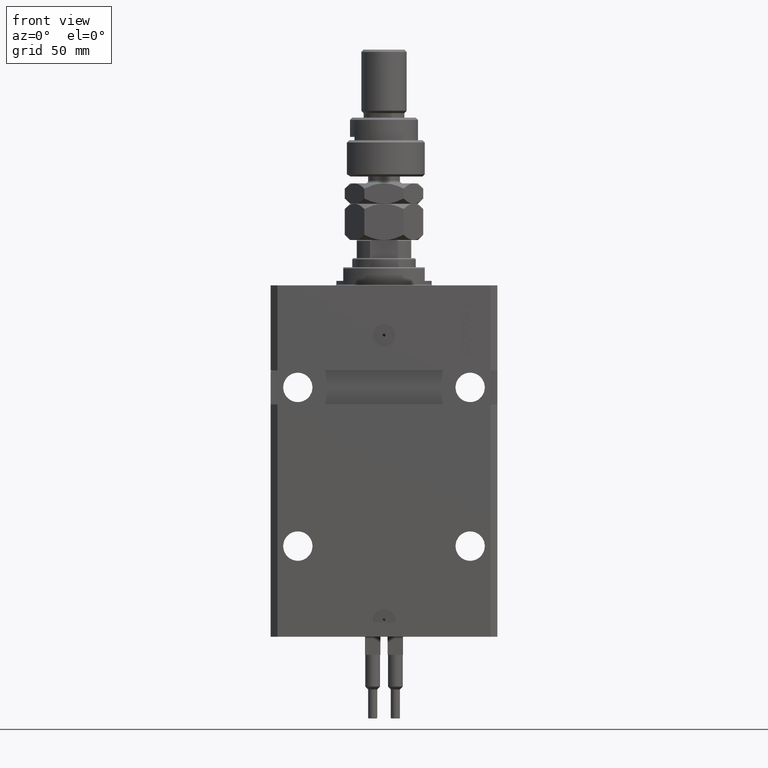
[diagram: clean part render]
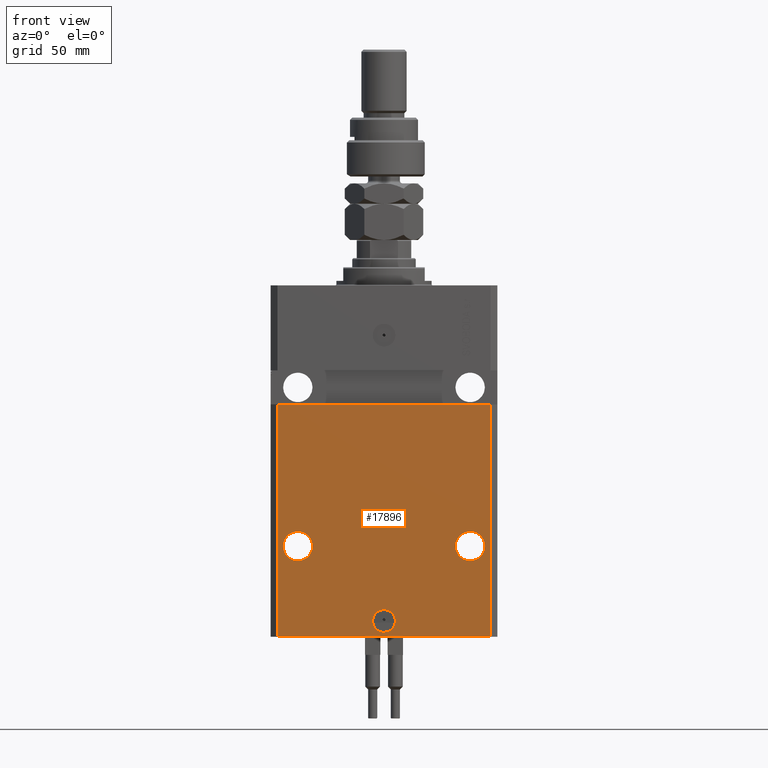
[diagram: same view with one face highlighted and labeled with its STEP entity id]
A machine part, front view. The second image highlights one B-rep face of the part: STEP entity #17896.
In plain terms, the highlighted planar face has unit normal (-0, -1, 0).
Its self-contained STEP definition (entity closure, byte-faithful):
#733 = AXIS2_PLACEMENT_3D ( 'NONE', #37827, #5577, #1926 ) ;
#892 = CIRCLE ( 'NONE', #9268, 6.499999999999999112 ) ;
#1264 = DIRECTION ( 'NONE',  ( 1.000000000000000000, 0.000000000000000000, 0.000000000000000000 ) ) ;
#1926 = DIRECTION ( 'NONE',  ( -1.000000000000000000, 0.000000000000000000, 0.000000000000000000 ) ) ;
#2331 = FACE_BOUND ( 'NONE', #46015, .T. ) ;
#2641 = EDGE_CURVE ( 'NONE', #31577, #24083, #23092, .T. ) ;
#3494 = DIRECTION ( 'NONE',  ( 1.176083712526788232E-16, -1.000000000000000000, 0.000000000000000000 ) ) ;
#5049 = LINE ( 'NONE', #5304, #22712 ) ;
#5304 = CARTESIAN_POINT ( 'NONE',  ( -47.00000000000000000, -37.49999999999999289, -155.0000000000000000 ) ) ;
#5450 = DIRECTION ( 'NONE',  ( 1.176083712526788232E-16, -1.000000000000000000, 0.000000000000000000 ) ) ;
#5577 = DIRECTION ( 'NONE',  ( 1.176083712526788232E-16, -1.000000000000000000, 0.000000000000000000 ) ) ;
#7646 = VERTEX_POINT ( 'NONE', #10876 ) ;
#7696 = DIRECTION ( 'NONE',  ( 1.176083712526788232E-16, -1.000000000000000000, 0.000000000000000000 ) ) ;
#8001 = CIRCLE ( 'NONE', #18877, 5.000000000000006217 ) ;
#8302 = CIRCLE ( 'NONE', #733, 6.499999999999999112 ) ;
#8561 = EDGE_LOOP ( 'NONE', ( #27623, #27031, #19033, #44954 ) ) ;
#9268 = AXIS2_PLACEMENT_3D ( 'NONE', #29040, #5450, #1264 ) ;
#9901 = VECTOR ( 'NONE', #41214, 1000.000000000000000 ) ;
#10200 = PLANE ( 'NONE',  #22279 ) ;
#10876 = CARTESIAN_POINT ( 'NONE',  ( 31.50000000000001421, -37.49999999999999289, -115.0000000000000000 ) ) ;
#11129 = CARTESIAN_POINT ( 'NONE',  ( -47.00000000000000000, -37.49999999999999289, -155.0000000000000000 ) ) ;
#11761 = VERTEX_POINT ( 'NONE', #16457 ) ;
#11863 = CARTESIAN_POINT ( 'NONE',  ( 38.00000000000001421, -37.49999999999999289, -115.0000000000000000 ) ) ;
#13002 = AXIS2_PLACEMENT_3D ( 'NONE', #11863, #19983, #28869 ) ;
#13715 = VERTEX_POINT ( 'NONE', #36156 ) ;
#14125 = FACE_BOUND ( 'NONE', #29677, .T. ) ;
#15513 = CIRCLE ( 'NONE', #13002, 6.499999999999999112 ) ;
#16457 = CARTESIAN_POINT ( 'NONE',  ( 47.00000000000000000, -37.49999999999999289, -52.49999999999998579 ) ) ;
#16469 = EDGE_CURVE ( 'NONE', #21232, #37559, #8001, .T. ) ;
#16543 = EDGE_CURVE ( 'NONE', #7646, #29997, #15513, .T. ) ;
#17642 = AXIS2_PLACEMENT_3D ( 'NONE', #47596, #51538, #51290 ) ;
#17861 = CARTESIAN_POINT ( 'NONE',  ( -46.99999999999998579, -37.50000000000000711, -52.50000000000000000 ) ) ;
#17896 = ADVANCED_FACE ( 'NONE', ( #2331, #14125, #49289, #45862 ), #10200, .T. ) ;
#18877 = AXIS2_PLACEMENT_3D ( 'NONE', #34917, #3494, #23653 ) ;
#19033 = ORIENTED_EDGE ( 'NONE', *, *, #26060, .T. ) ;
#19872 = CARTESIAN_POINT ( 'NONE',  ( -44.50000000000002842, -37.50000000000000711, -115.0000000000000000 ) ) ;
#19983 = DIRECTION ( 'NONE',  ( 1.176083712526788232E-16, -1.000000000000000000, 0.000000000000000000 ) ) ;
#21232 = VERTEX_POINT ( 'NONE', #26551 ) ;
#21534 = ORIENTED_EDGE ( 'NONE', *, *, #50591, .F. ) ;
#22279 = AXIS2_PLACEMENT_3D ( 'NONE', #49029, #33002, #38227 ) ;
#22372 = EDGE_CURVE ( 'NONE', #46599, #11761, #42436, .T. ) ;
#22411 = ORIENTED_EDGE ( 'NONE', *, *, #50031, .F. ) ;
#22712 = VECTOR ( 'NONE', #45169, 1000.000000000000000 ) ;
#23092 = CIRCLE ( 'NONE', #24749, 6.499999999999999112 ) ;
#23653 = DIRECTION ( 'NONE',  ( 1.000000000000000000, 0.000000000000000000, 0.000000000000000000 ) ) ;
#24083 = VERTEX_POINT ( 'NONE', #19872 ) ;
#24140 = VECTOR ( 'NONE', #47318, 1000.000000000000000 ) ;
#24382 = VERTEX_POINT ( 'NONE', #30448 ) ;
#24749 = AXIS2_PLACEMENT_3D ( 'NONE', #48074, #7696, #43876 ) ;
#26060 = EDGE_CURVE ( 'NONE', #24382, #13715, #43643, .T. ) ;
#26281 = EDGE_CURVE ( 'NONE', #24083, #31577, #8302, .T. ) ;
#26427 = CARTESIAN_POINT ( 'NONE',  ( -50.00000000000002842, -37.50000000000000711, -52.50000000000000000 ) ) ;
#26551 = CARTESIAN_POINT ( 'NONE',  ( 5.000000000000000888, -37.50000000000000000, -148.0000000000000000 ) ) ;
#27031 = ORIENTED_EDGE ( 'NONE', *, *, #34406, .F. ) ;
#27126 = ORIENTED_EDGE ( 'NONE', *, *, #26281, .F. ) ;
#27623 = ORIENTED_EDGE ( 'NONE', *, *, #22372, .F. ) ;
#28237 = EDGE_CURVE ( 'NONE', #13715, #11761, #30692, .T. ) ;
#28869 = DIRECTION ( 'NONE',  ( 1.000000000000000000, 0.000000000000000000, 0.000000000000000000 ) ) ;
#29040 = CARTESIAN_POINT ( 'NONE',  ( 38.00000000000001421, -37.49999999999999289, -115.0000000000000000 ) ) ;
#29664 = CARTESIAN_POINT ( 'NONE',  ( 47.00000000000000000, -37.50000000000000711, -155.0000000000000000 ) ) ;
#29677 = EDGE_LOOP ( 'NONE', ( #22411, #50313 ) ) ;
#29997 = VERTEX_POINT ( 'NONE', #51345 ) ;
#30448 = CARTESIAN_POINT ( 'NONE',  ( -47.00000000000000000, -37.49999999999999289, -155.0000000000000000 ) ) ;
#30692 = LINE ( 'NONE', #29664, #30942 ) ;
#30942 = VECTOR ( 'NONE', #45685, 1000.000000000000000 ) ;
#31577 = VERTEX_POINT ( 'NONE', #33565 ) ;
#33002 = DIRECTION ( 'NONE',  ( -1.476360405086644309E-16, -1.000000000000000000, 0.000000000000000000 ) ) ;
#33565 = CARTESIAN_POINT ( 'NONE',  ( -31.50000000000002842, -37.50000000000000711, -115.0000000000000000 ) ) ;
#34406 = EDGE_CURVE ( 'NONE', #24382, #46599, #5049, .T. ) ;
#34917 = CARTESIAN_POINT ( 'NONE',  ( -5.536351519074916863E-15, -37.50000000000000000, -148.0000000000000000 ) ) ;
#36156 = CARTESIAN_POINT ( 'NONE',  ( 47.00000000000000000, -37.50000000000000711, -155.0000000000000000 ) ) ;
#37559 = VERTEX_POINT ( 'NONE', #49177 ) ;
#37827 = CARTESIAN_POINT ( 'NONE',  ( -38.00000000000002842, -37.50000000000000711, -115.0000000000000000 ) ) ;
#38227 = DIRECTION ( 'NONE',  ( 1.000000000000000000, -1.476360405086644309E-16, 0.000000000000000000 ) ) ;
#40239 = CIRCLE ( 'NONE', #17642, 5.000000000000006217 ) ;
#41214 = DIRECTION ( 'NONE',  ( 1.000000000000000000, 1.387778780781445182E-16, 1.387778780781445182E-16 ) ) ;
#42436 = LINE ( 'NONE', #26427, #9901 ) ;
#43643 = LINE ( 'NONE', #11129, #24140 ) ;
#43703 = ORIENTED_EDGE ( 'NONE', *, *, #16469, .F. ) ;
#43876 = DIRECTION ( 'NONE',  ( -1.000000000000000000, 0.000000000000000000, 0.000000000000000000 ) ) ;
#44954 = ORIENTED_EDGE ( 'NONE', *, *, #28237, .T. ) ;
#45169 = DIRECTION ( 'NONE',  ( 0.000000000000000000, 0.000000000000000000, 1.000000000000000000 ) ) ;
#45685 = DIRECTION ( 'NONE',  ( 0.000000000000000000, 0.000000000000000000, 1.000000000000000000 ) ) ;
#45862 = FACE_OUTER_BOUND ( 'NONE', #8561, .T. ) ;
#46015 = EDGE_LOOP ( 'NONE', ( #43703, #21534 ) ) ;
#46599 = VERTEX_POINT ( 'NONE', #17861 ) ;
#47139 = EDGE_LOOP ( 'NONE', ( #49707, #27126 ) ) ;
#47318 = DIRECTION ( 'NONE',  ( 1.000000000000000000, -1.476360405086644309E-16, 0.000000000000000000 ) ) ;
#47596 = CARTESIAN_POINT ( 'NONE',  ( -5.536351519074916863E-15, -37.50000000000000000, -148.0000000000000000 ) ) ;
#48074 = CARTESIAN_POINT ( 'NONE',  ( -38.00000000000002842, -37.50000000000000711, -115.0000000000000000 ) ) ;
#49029 = CARTESIAN_POINT ( 'NONE',  ( -47.00000000000000000, -37.49999999999999289, -155.0000000000000000 ) ) ;
#49177 = CARTESIAN_POINT ( 'NONE',  ( -5.000000000000011546, -37.50000000000000000, -148.0000000000000000 ) ) ;
#49289 = FACE_BOUND ( 'NONE', #47139, .T. ) ;
#49707 = ORIENTED_EDGE ( 'NONE', *, *, #2641, .F. ) ;
#50031 = EDGE_CURVE ( 'NONE', #29997, #7646, #892, .T. ) ;
#50313 = ORIENTED_EDGE ( 'NONE', *, *, #16543, .F. ) ;
#50591 = EDGE_CURVE ( 'NONE', #37559, #21232, #40239, .T. ) ;
#51290 = DIRECTION ( 'NONE',  ( 1.000000000000000000, 0.000000000000000000, 0.000000000000000000 ) ) ;
#51345 = CARTESIAN_POINT ( 'NONE',  ( 44.50000000000001421, -37.49999999999999289, -115.0000000000000000 ) ) ;
#51538 = DIRECTION ( 'NONE',  ( 1.176083712526788232E-16, -1.000000000000000000, 0.000000000000000000 ) ) ;